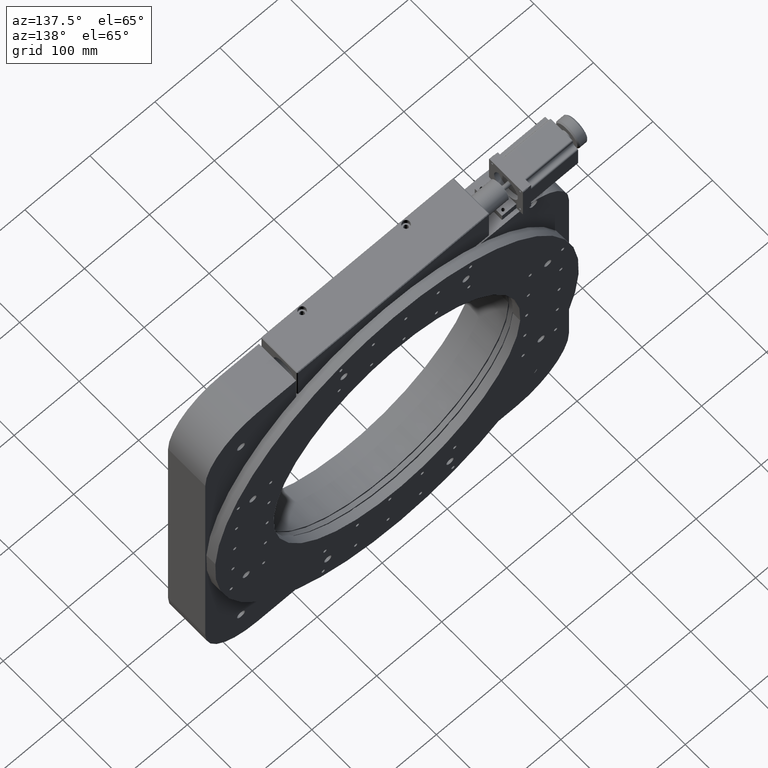
[diagram: clean part render]
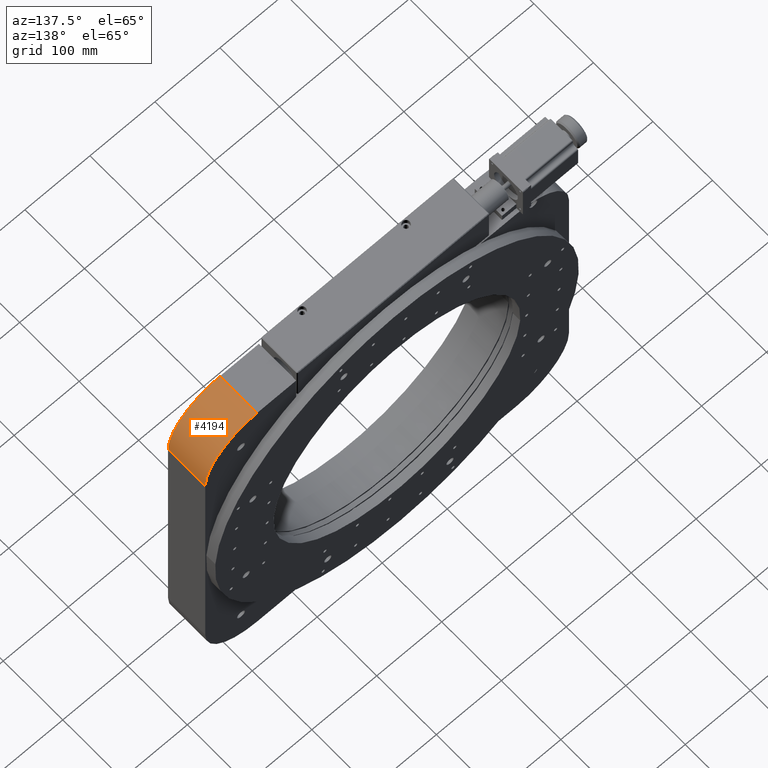
[diagram: same view with one face highlighted and labeled with its STEP entity id]
A machine part, auxiliary view. The second image highlights one B-rep face of the part: STEP entity #4194.
In plain terms, the highlighted cylindrical surface (partial cylindrical patch) has radius 80 mm, axis along (0, -1, 0).
Its self-contained STEP definition (entity closure, byte-faithful):
#1461 = LINE ( 'NONE', #22110, #13706 ) ;
#4194 = ADVANCED_FACE ( 'NONE', ( #15378 ), #9625, .T. ) ;
#4396 = EDGE_CURVE ( 'NONE', #14098, #5926, #1461, .T. ) ;
#5059 = DIRECTION ( 'NONE',  ( -1.000000000000000000, 0.0000000000000000000, 0.0000000000000000000 ) ) ;
#5772 = DIRECTION ( 'NONE',  ( 0.0000000000000000000, -1.000000000000000000, 3.491481338843133400E-015 ) ) ;
#5926 = VERTEX_POINT ( 'NONE', #20124 ) ;
#5969 = EDGE_CURVE ( 'NONE', #30815, #14098, #25269, .T. ) ;
#6254 = CARTESIAN_POINT ( 'NONE',  ( 438.0000000000001700, -3.330669073875469600E-013, -91.99999999999997200 ) ) ;
#6359 = CARTESIAN_POINT ( 'NONE',  ( 358.0000000000001700, 62.49999999999997200, -12.00000000000017800 ) ) ;
#6797 = EDGE_LOOP ( 'NONE', ( #22581, #16910, #25592, #11395 ) ) ;
#6895 = CARTESIAN_POINT ( 'NONE',  ( 358.0000000000002300, 62.49999999999997200, -12.00000000000023300 ) ) ;
#7236 = DIRECTION ( 'NONE',  ( 0.0000000000000000000, -1.000000000000000000, 3.491481338843133400E-015 ) ) ;
#7237 = DIRECTION ( 'NONE',  ( -1.000000000000000000, 0.0000000000000000000, 0.0000000000000000000 ) ) ;
#8393 = CARTESIAN_POINT ( 'NONE',  ( 358.0000000000001700, 62.49999999999969400, -92.00000000000024200 ) ) ;
#9625 = CYLINDRICAL_SURFACE ( 'NONE', #33504, 80.00000000000001400 ) ;
#9951 = CARTESIAN_POINT ( 'NONE',  ( 358.0000000000001700, -3.330669073875469600E-013, -92.00000000000002800 ) ) ;
#10082 = EDGE_CURVE ( 'NONE', #5926, #18923, #25395, .T. ) ;
#10232 = AXIS2_PLACEMENT_3D ( 'NONE', #25788, #20454, #7237 ) ;
#10388 = DIRECTION ( 'NONE',  ( -0.0000000000000000000, 1.000000000000000000, -3.491481338843133400E-015 ) ) ;
#11395 = ORIENTED_EDGE ( 'NONE', *, *, #26534, .T. ) ;
#13621 = DIRECTION ( 'NONE',  ( -1.000000000000000000, 0.0000000000000000000, 0.0000000000000000000 ) ) ;
#13706 = VECTOR ( 'NONE', #27535, 1000.000000000000000 ) ;
#14098 = VERTEX_POINT ( 'NONE', #6254 ) ;
#15378 = FACE_OUTER_BOUND ( 'NONE', #6797, .T. ) ;
#16910 = ORIENTED_EDGE ( 'NONE', *, *, #4396, .T. ) ;
#18923 = VERTEX_POINT ( 'NONE', #6359 ) ;
#20124 = CARTESIAN_POINT ( 'NONE',  ( 438.0000000000001700, 62.49999999999969400, -92.00000000000019900 ) ) ;
#20454 = DIRECTION ( 'NONE',  ( 0.0000000000000000000, -1.000000000000000000, 3.491481338843133400E-015 ) ) ;
#21854 = LINE ( 'NONE', #6895, #23059 ) ;
#22110 = CARTESIAN_POINT ( 'NONE',  ( 438.0000000000001700, 62.49999999999969400, -92.00000000000019900 ) ) ;
#22581 = ORIENTED_EDGE ( 'NONE', *, *, #5969, .T. ) ;
#23059 = VECTOR ( 'NONE', #7236, 1000.000000000000000 ) ;
#24488 = AXIS2_PLACEMENT_3D ( 'NONE', #9951, #10388, #5059 ) ;
#25269 = CIRCLE ( 'NONE', #24488, 80.00000000000001400 ) ;
#25395 = CIRCLE ( 'NONE', #10232, 80.00000000000001400 ) ;
#25592 = ORIENTED_EDGE ( 'NONE', *, *, #10082, .T. ) ;
#25788 = CARTESIAN_POINT ( 'NONE',  ( 358.0000000000001700, 62.49999999999969400, -92.00000000000024200 ) ) ;
#26534 = EDGE_CURVE ( 'NONE', #18923, #30815, #21854, .T. ) ;
#27096 = CARTESIAN_POINT ( 'NONE',  ( 358.0000000000001700, 0.0000000000000000000, -11.99999999999995600 ) ) ;
#27535 = DIRECTION ( 'NONE',  ( 0.0000000000000000000, 1.000000000000000000, -3.491481338843133400E-015 ) ) ;
#30815 = VERTEX_POINT ( 'NONE', #27096 ) ;
#33504 = AXIS2_PLACEMENT_3D ( 'NONE', #8393, #5772, #13621 ) ;